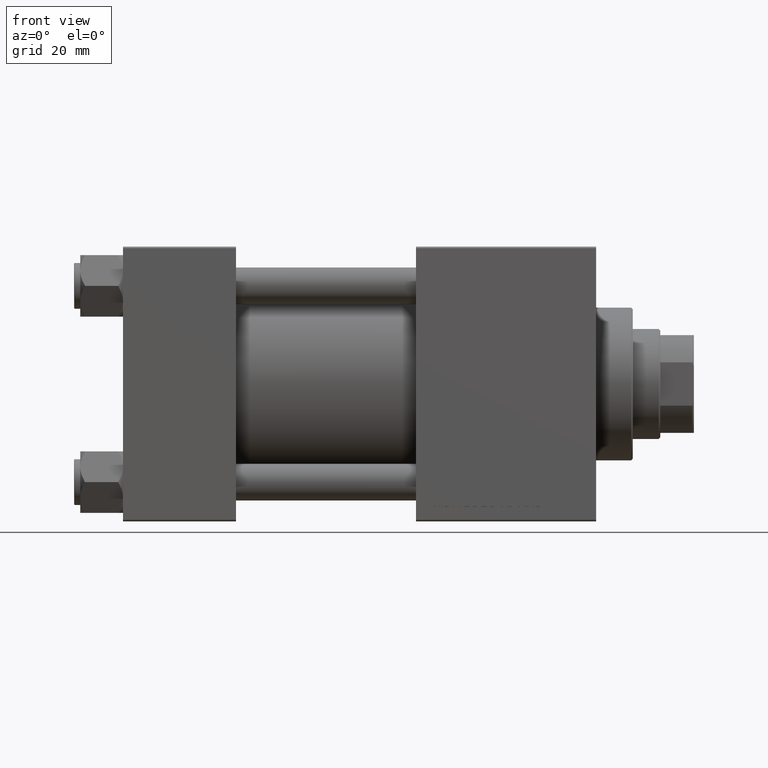
[diagram: clean part render]
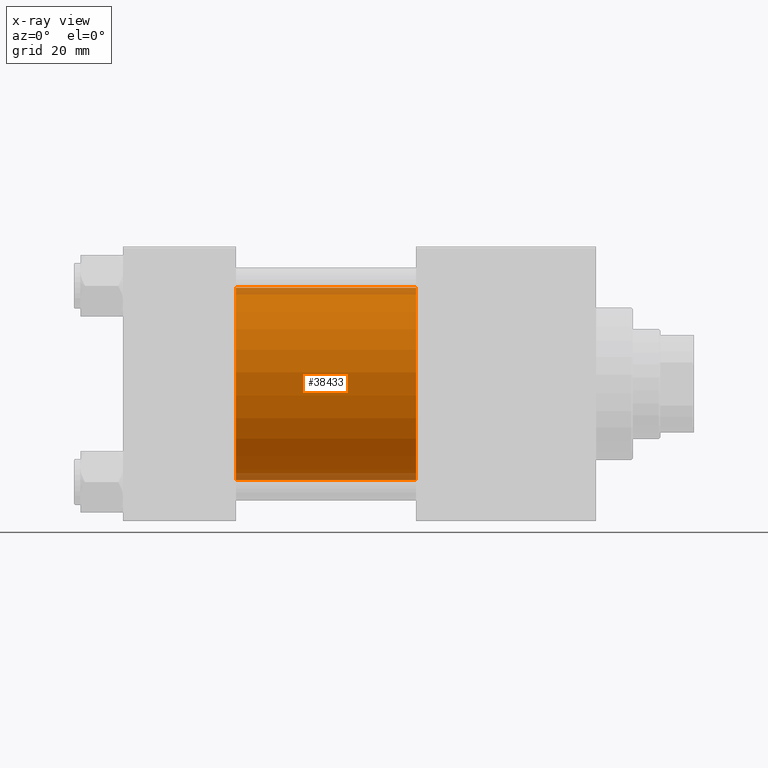
[diagram: x-ray — body ghosted, one internal face saturated and labeled with its STEP entity id]
A machine part, front view, then the same camera in x-ray: the body is ghosted and one INTERNAL B-rep face — a face not visible from any outside direction — is saturated and labeled: STEP entity #38433.
In plain terms, the highlighted cylindrical surface (partial cylindrical patch) has radius 31.5 mm, axis along (-1, -0, -0).
Its self-contained STEP definition (entity closure, byte-faithful):
#160 = EDGE_CURVE ( 'NONE', #3024, #29856, #22761, .T. ) ;
#1342 = DIRECTION ( 'NONE',  ( 1.000000000000000000, 0.000000000000000000, 0.000000000000000000 ) ) ;
#3024 = VERTEX_POINT ( 'NONE', #50120 ) ;
#4035 = DIRECTION ( 'NONE',  ( 0.000000000000000000, 0.000000000000000000, 1.000000000000000000 ) ) ;
#4585 = CARTESIAN_POINT ( 'NONE',  ( 96.00000000000000000, 1.255552203348951850E-15, -31.50000000000000000 ) ) ;
#5511 = VECTOR ( 'NONE', #10104, 1000.000000000000000 ) ;
#6505 = DIRECTION ( 'NONE',  ( -1.000000000000000000, -0.000000000000000000, -0.000000000000000000 ) ) ;
#6632 = VERTEX_POINT ( 'NONE', #36653 ) ;
#7231 = EDGE_LOOP ( 'NONE', ( #9330, #49130, #22948, #34600 ) ) ;
#7861 = CARTESIAN_POINT ( 'NONE',  ( 37.00000000000000000, -2.602085213965210642E-15, 31.50000000000000000 ) ) ;
#9330 = ORIENTED_EDGE ( 'NONE', *, *, #160, .T. ) ;
#9348 = AXIS2_PLACEMENT_3D ( 'NONE', #18987, #42356, #4035 ) ;
#10104 = DIRECTION ( 'NONE',  ( -1.000000000000000000, -0.000000000000000000, -0.000000000000000000 ) ) ;
#13329 = DIRECTION ( 'NONE',  ( 0.000000000000000000, 0.000000000000000000, -1.000000000000000000 ) ) ;
#16797 = DIRECTION ( 'NONE',  ( 0.000000000000000000, 0.000000000000000000, -1.000000000000000000 ) ) ;
#17706 = CARTESIAN_POINT ( 'NONE',  ( 96.00000000000000000, -2.602085213965210642E-15, 31.50000000000000000 ) ) ;
#18987 = CARTESIAN_POINT ( 'NONE',  ( 96.00000000000000000, -2.602085213965210642E-15, 0.000000000000000000 ) ) ;
#20357 = CIRCLE ( 'NONE', #40665, 31.50000000000000000 ) ;
#22761 = CIRCLE ( 'NONE', #33987, 31.50000000000000000 ) ;
#22948 = ORIENTED_EDGE ( 'NONE', *, *, #30516, .F. ) ;
#25783 = LINE ( 'NONE', #41275, #41166 ) ;
#29856 = VERTEX_POINT ( 'NONE', #4585 ) ;
#30516 = EDGE_CURVE ( 'NONE', #35476, #6632, #20357, .T. ) ;
#31785 = CARTESIAN_POINT ( 'NONE',  ( 37.00000000000000000, -2.602085213965210642E-15, 0.000000000000000000 ) ) ;
#33987 = AXIS2_PLACEMENT_3D ( 'NONE', #36429, #40241, #13329 ) ;
#34600 = ORIENTED_EDGE ( 'NONE', *, *, #48710, .F. ) ;
#35476 = VERTEX_POINT ( 'NONE', #7861 ) ;
#36429 = CARTESIAN_POINT ( 'NONE',  ( 96.00000000000000000, -2.602085213965210642E-15, 0.000000000000000000 ) ) ;
#36653 = CARTESIAN_POINT ( 'NONE',  ( 37.00000000000000000, 1.255552203348951850E-15, -31.50000000000000000 ) ) ;
#38433 = ADVANCED_FACE ( 'NONE', ( #41859 ), #46178, .F. ) ;
#40241 = DIRECTION ( 'NONE',  ( 1.000000000000000000, 0.000000000000000000, 0.000000000000000000 ) ) ;
#40665 = AXIS2_PLACEMENT_3D ( 'NONE', #31785, #1342, #16797 ) ;
#41166 = VECTOR ( 'NONE', #6505, 1000.000000000000000 ) ;
#41275 = CARTESIAN_POINT ( 'NONE',  ( 96.00000000000000000, 1.255552203348951850E-15, -31.50000000000000000 ) ) ;
#41859 = FACE_OUTER_BOUND ( 'NONE', #7231, .T. ) ;
#42356 = DIRECTION ( 'NONE',  ( -1.000000000000000000, -0.000000000000000000, -0.000000000000000000 ) ) ;
#44640 = LINE ( 'NONE', #17706, #5511 ) ;
#46178 = CYLINDRICAL_SURFACE ( 'NONE', #9348, 31.50000000000000000 ) ;
#48710 = EDGE_CURVE ( 'NONE', #3024, #35476, #44640, .T. ) ;
#49130 = ORIENTED_EDGE ( 'NONE', *, *, #49177, .T. ) ;
#49177 = EDGE_CURVE ( 'NONE', #29856, #6632, #25783, .T. ) ;
#50120 = CARTESIAN_POINT ( 'NONE',  ( 96.00000000000000000, -2.602085213965210642E-15, 31.50000000000000000 ) ) ;